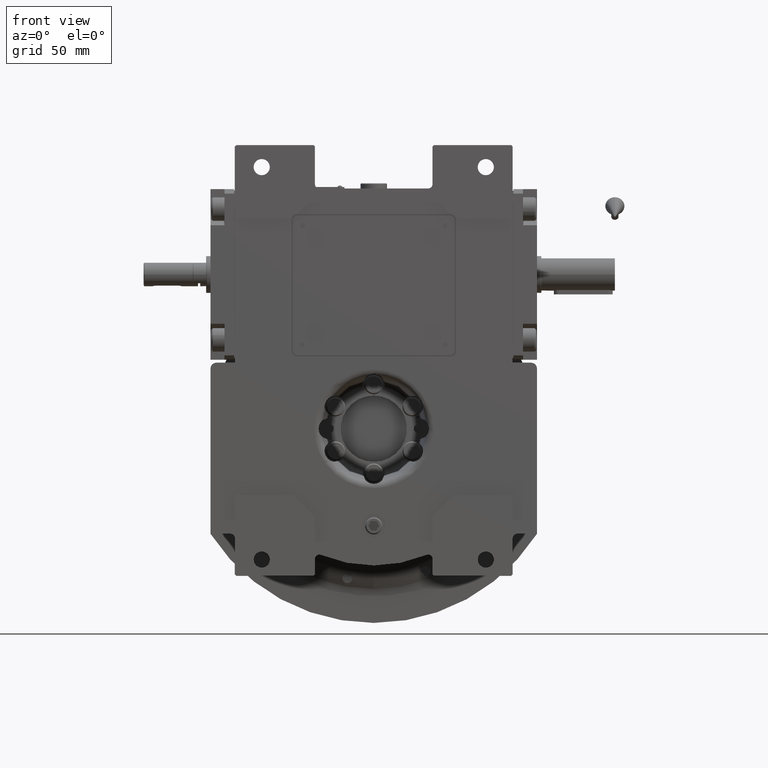
[diagram: clean part render]
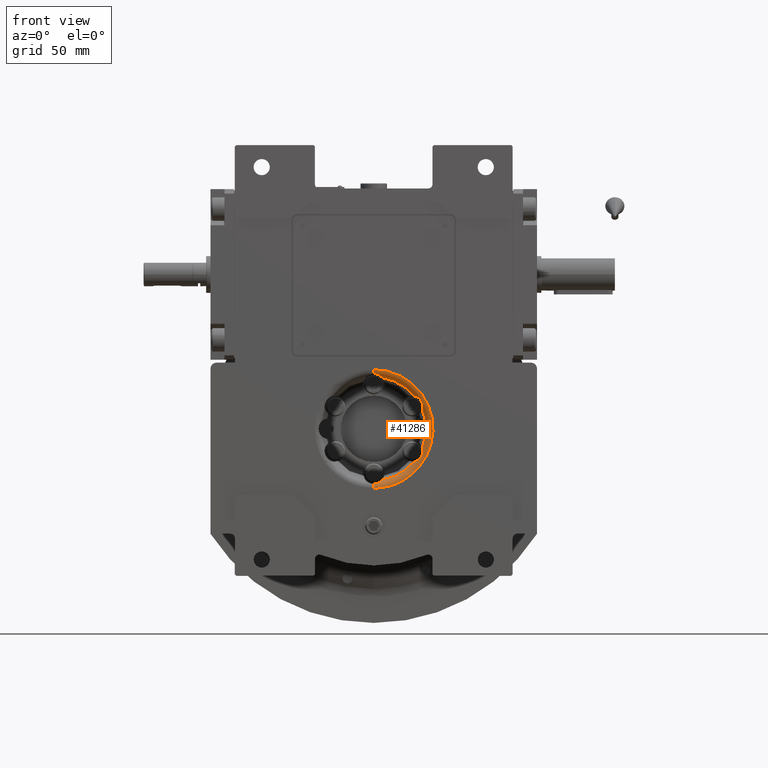
[diagram: same view with one face highlighted and labeled with its STEP entity id]
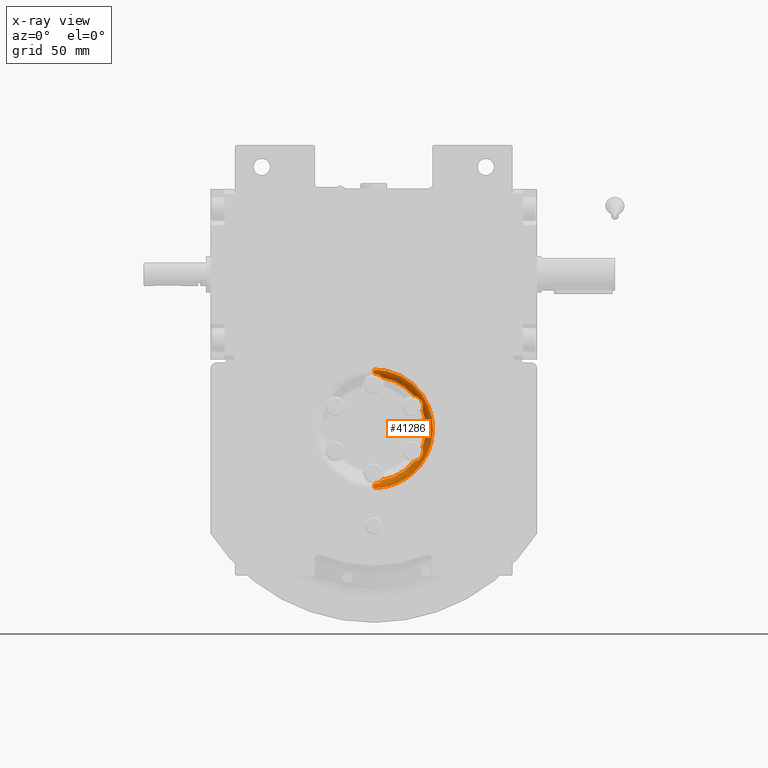
[diagram: x-ray of the same camera — body ghosted, the highlighted face saturated]
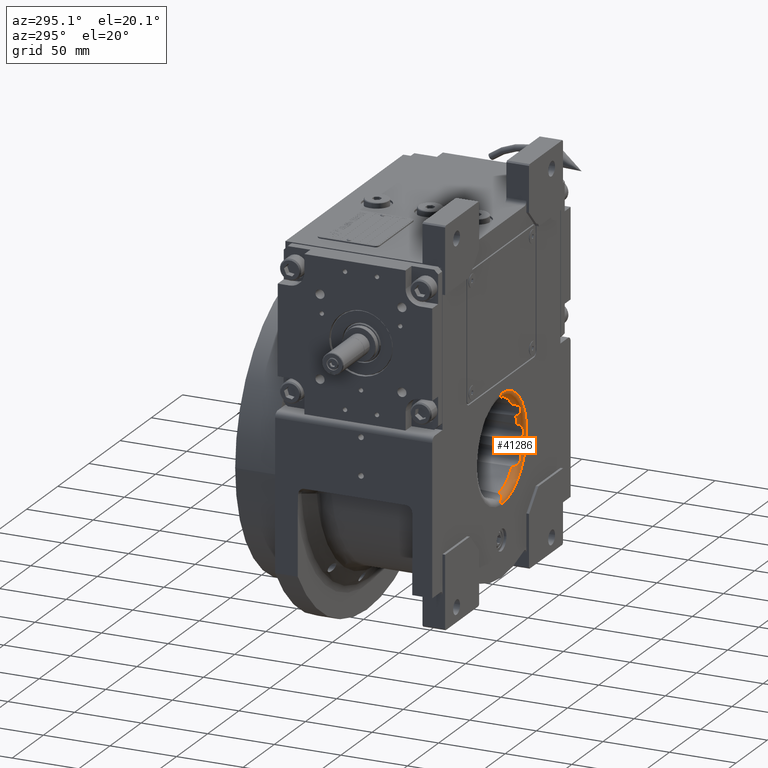
[diagram: same view with one face highlighted and labeled with its STEP entity id]
A machine part, front view. The second image highlights one B-rep face of the part: STEP entity #41286.
The next image is the same camera in x-ray: the body ghosted, the highlighted face saturated — about 0% of this face is hidden behind the body in this view.
A second angle (auxiliary view) of the same face is appended — the face is thin or edge-on in the first view.
In plain terms, the highlighted toroidal blend (fillet) surface has major radius 40.3096 mm and minor (blend) radius 5 mm.
Its self-contained STEP definition (entity closure, byte-faithful):
#58 = CARTESIAN_POINT ( 'NONE',  ( 5.337701823371754806, -50.36790029787562872, -35.26884467588536154 ) ) ;
#129 = CARTESIAN_POINT ( 'NONE',  ( 33.17893052199347181, -52.51570751897647682, 17.10961350186001795 ) ) ;
#495 = CARTESIAN_POINT ( 'NONE',  ( 33.13291483700965756, -49.87096445335872374, -12.74149848118316974 ) ) ;
#1062 = CARTESIAN_POINT ( 'NONE',  ( 3.927364176773904703, -51.85339626314458172, -36.38951892855690318 ) ) ;
#1251 = VERTEX_POINT ( 'NONE', #58773 ) ;
#1513 = ORIENTED_EDGE ( 'NONE', *, *, #58444, .T. ) ;
#1780 = CARTESIAN_POINT ( 'NONE',  ( 33.47122554379335213, -51.71447766371607457, 14.49539197650247324 ) ) ;
#1911 = CARTESIAN_POINT ( 'NONE',  ( 27.31593238095755183, -48.69402850002909844, -22.38019785351220392 ) ) ;
#1923 = CARTESIAN_POINT ( 'NONE',  ( 2.734876950820428032, -52.32990322030311603, 36.99229463659165162 ) ) ;
#2087 = DIRECTION ( 'NONE',  ( 0.1620874830058615379, 0.000000000000000000, 0.9867763920224401630 ) ) ;
#2116 = CARTESIAN_POINT ( 'NONE',  ( 36.56951354596490944, -52.01488252080931574, 3.630701753716773617 ) ) ;
#2455 = CARTESIAN_POINT ( 'NONE',  ( 36.40000049578573282, -51.86281786899579060, 3.909833307100125221 ) ) ;
#3137 = ORIENTED_EDGE ( 'NONE', *, *, #36377, .T. ) ;
#3145 = CARTESIAN_POINT ( 'NONE',  ( 35.21699317913081728, -50.25430774466143191, 5.388069560106872657 ) ) ;
#3476 = CARTESIAN_POINT ( 'NONE',  ( 28.10521256263347212, -50.68228589387105387, -22.19279268949464523 ) ) ;
#3529 = CARTESIAN_POINT ( 'NONE',  ( 5.064238222211565166, -50.84381052456432570, 35.53296774913933120 ) ) ;
#3813 = CARTESIAN_POINT ( 'NONE',  ( 29.00815283428548597, -51.53334905786609710, -21.86827045392459112 ) ) ;
#4105 = AXIS2_PLACEMENT_3D ( 'NONE', #41532, #55928, #45641 ) ;
#4238 = CARTESIAN_POINT ( 'NONE',  ( 27.87367530640939606, -50.36585204076593669, 22.25717817202906801 ) ) ;
#4517 = CARTESIAN_POINT ( 'NONE',  ( 28.23862424446462072, -50.84186257216887128, -22.15274620477019596 ) ) ;
#4834 = CARTESIAN_POINT ( 'NONE',  ( 35.59153721165860418, -50.93297889962916258, -4.999541244640769655 ) ) ;
#4841 = CARTESIAN_POINT ( 'NONE',  ( 29.60377671637495567, -51.88159357622579648, -21.56661933879855653 ) ) ;
#4846 = CARTESIAN_POINT ( 'NONE',  ( 2.887888765445114636, -52.28084012321035345, -36.92445607883065861 ) ) ;
#4954 = CARTESIAN_POINT ( 'NONE',  ( 33.47638412819470943, -51.83192453920597131, -14.74925148371837302 ) ) ;
#5259 = CARTESIAN_POINT ( 'NONE',  ( 31.17941295975750293, -52.46491026454771855, 20.40595241245062397 ) ) ;
#5300 = CARTESIAN_POINT ( 'NONE',  ( 1.603850723419534978E-09, -52.63596184683439816, -37.50000000000000000 ) ) ;
#5303 = CARTESIAN_POINT ( 'NONE',  ( 32.29792690182187442, -52.63597494237206575, -19.05838855115340280 ) ) ;
#5598 = CARTESIAN_POINT ( 'NONE',  ( 28.02680617592910295, -50.58149897954005070, 22.21531316707490689 ) ) ;
#5968 = CARTESIAN_POINT ( 'NONE',  ( 33.04653019408335268, -49.04715237561592289, -12.48716493955152984 ) ) ;
#6199 = CARTESIAN_POINT ( 'NONE',  ( 3.962931187770181829, -51.83334784987367527, -36.36752667095072411 ) ) ;
#6411 = CARTESIAN_POINT ( 'NONE',  ( 5.694300232764478054, -49.40179032185762509, 34.87909896521011888 ) ) ;
#6931 = CARTESIAN_POINT ( 'NONE',  ( 33.46828871974677355, -52.12832100846947014, 15.46501159769935541 ) ) ;
#6961 = ORIENTED_EDGE ( 'NONE', *, *, #15306, .T. ) ;
#7279 = CARTESIAN_POINT ( 'NONE',  ( 33.30415381935078045, -50.84186645004189131, 13.37899650279992692 ) ) ;
#7288 = ORIENTED_EDGE ( 'NONE', *, *, #45070, .T. ) ;
#7430 = CARTESIAN_POINT ( 'NONE',  ( 1.915896033320932945, -52.49325482626420580, 37.25139006346445569 ) ) ;
#7631 = CARTESIAN_POINT ( 'NONE',  ( 37.28859166014729709, -52.51570052770613728, -1.772154628594864834 ) ) ;
#7958 = CARTESIAN_POINT ( 'NONE',  ( 37.11171875027556410, -52.40727896301838484, -2.409187821952439190 ) ) ;
#7977 = DIRECTION ( 'NONE',  ( 0.7735296818432549903, 0.000000000000000000, -0.6337600739297740704 ) ) ;
#8029 = B_SPLINE_CURVE_WITH_KNOTS ( 'NONE', 3,
 ( #31425, #61708, #51722, #36948, #21100, #36278, #4238, #40758, #15909, #5598, #31774, #26606, #57893, #35575, #10760, #9396, #46247, #52040, #46923, #52733, #67234, #25270, #41450, #67918, #19739, #20758, #20071, #47260, #41783, #41091, #5259, #36607, #56879, #25598, #35931, #9749, #30760, #46573, #129, #67569, #62391, #15248, #58561, #33446, #54415, #22439, #6931, #54075, #58242, #12101, #42450, #32435, #17630, #1780, #16931, #32099, #21431, #22785, #7279, #12425, #28299, #16257, #64775, #37293, #26939, #11760 ),
 .UNSPECIFIED., .F., .F.,
 ( 4, 2, 2, 1, 1, 2, 2, 2, 2, 1, 1, 2, 2, 2, 2, 1, 1, 2, 2, 2, 2, 2, 1, 1, 2, 2, 2, 2, 1, 1, 2, 2, 2, 2, 1, 1, 2, 2, 4 ),
 ( 0.000000000000000000, 0.06249999999999968081, 0.09374999999999891753, 0.1093749999999992228, 0.1171874999999995420, 0.1210937499999996531, 0.1249999999999997780, 0.1874999999999952816, 0.2187499999999927836, 0.2343749999999917566, 0.2421874999999907296, 0.2460937499999900913, 0.2499999999999894251, 0.3124999999999811817, 0.3437499999999769074, 0.3593749999999746314, 0.3671874999999735767, 0.3710937499999735767, 0.3749999999999735767, 0.4999999999999857891, 0.5624999999999918954, 0.5937499999999953371, 0.6093749999999971134, 0.6171874999999977796, 0.6210937499999976685, 0.6249999999999976685, 0.6875000000000015543, 0.7187500000000036637, 0.7343750000000046629, 0.7421875000000054401, 0.7460937500000058842, 0.7500000000000062172, 0.8125000000000159872, 0.8437500000000210942, 0.8593750000000232037, 0.8671875000000238698, 0.8710937500000242029, 0.8750000000000245359, 1.000000000000000000 ),
 .UNSPECIFIED. ) ;
#8290 = CARTESIAN_POINT ( 'NONE',  ( 36.54770422788802620, -51.99170874615509774, -3.658729259004236845 ) ) ;
#8641 = CARTESIAN_POINT ( 'NONE',  ( 28.14449002315179627, -50.73086332806069976, -22.18124559644082439 ) ) ;
#8695 = CARTESIAN_POINT ( 'NONE',  ( 5.185284179251578252, -50.65179097844611533, 35.41871935972974228 ) ) ;
#8974 = CARTESIAN_POINT ( 'NONE',  ( 37.07678360962030695, -52.38337510237533223, 2.485916156923164255 ) ) ;
#8979 = CARTESIAN_POINT ( 'NONE',  ( 31.49487247763566700, -52.53291593041920748, -20.08474139120361812 ) ) ;
#9075 = DIRECTION ( 'NONE',  ( 4.918457069522339947E-18, -1.000000000000000000, 1.317897701722344040E-19 ) ) ;
#9081 = CARTESIAN_POINT ( 'NONE',  ( 6.679101716144940737E-13, -48.69402850002909844, 2.211564265053310061E-13 ) ) ;
#9317 = CARTESIAN_POINT ( 'NONE',  ( 28.06722011688169616, -50.63430292875203520, -22.20382291926351925 ) ) ;
#9396 = CARTESIAN_POINT ( 'NONE',  ( 29.22287938312502220, -51.66287537548548414, 21.76369081053033483 ) ) ;
#9675 = CARTESIAN_POINT ( 'NONE',  ( 30.26292163212067621, -52.18244000722235398, -21.16009774410348854 ) ) ;
#9749 = CARTESIAN_POINT ( 'NONE',  ( 33.00279054788138211, -52.58169897620617661, 17.64155589278328051 ) ) ;
#10006 = ORIENTED_EDGE ( 'NONE', *, *, #28846, .T. ) ;
#10017 = CARTESIAN_POINT ( 'NONE',  ( 30.66795111193989598, -52.32953584293530014, -20.86511408391906386 ) ) ;
#10021 = CARTESIAN_POINT ( 'NONE',  ( 5.531674867255628847, -49.87266461486670011, -35.06522989261907952 ) ) ;
#10340 = CARTESIAN_POINT ( 'NONE',  ( 1.402137546746539121, -52.58474267378018396, -37.39942789233111142 ) ) ;
#10454 = CARTESIAN_POINT ( 'NONE',  ( 33.03978607334229878, -48.69402850002909844, -12.46619244321105846 ) ) ;
#10555 = ORIENTED_EDGE ( 'NONE', *, *, #30285, .F. ) ;
#10695 = CIRCLE ( 'NONE', #4105, 35.31336033009824149 ) ;
#10760 = CARTESIAN_POINT ( 'NONE',  ( 29.01356977931722980, -51.52633281368774476, 21.86180825632124680 ) ) ;
#10974 = AXIS2_PLACEMENT_3D ( 'NONE', #12738, #49239, #2087 ) ;
#11050 = ORIENTED_EDGE ( 'NONE', *, *, #64403, .F. ) ;
#11147 = CARTESIAN_POINT ( 'NONE',  ( 33.32725159861366393, -52.41119431303569343, -16.51474471725534698 ) ) ;
#11353 = CARTESIAN_POINT ( 'NONE',  ( 5.244244371709466002, -50.54810657151961806, -35.36152057363512569 ) ) ;
#11571 = CARTESIAN_POINT ( 'NONE',  ( 1.770545071225397615, -52.51592466916218171, 37.28897095198423273 ) ) ;
#11760 = CARTESIAN_POINT ( 'NONE',  ( 33.03978607334229878, -48.69402850002909844, 12.46619244321109932 ) ) ;
#11907 = CARTESIAN_POINT ( 'NONE',  ( 5.194316906232550046, -50.63645387778893081, 35.41003222839429299 ) ) ;
#12101 = CARTESIAN_POINT ( 'NONE',  ( 33.48064371808035844, -51.93308210363574773, 14.96854866295646680 ) ) ;
#12235 = CARTESIAN_POINT ( 'NONE',  ( 1.221830501838894634, -52.58184760369663735, 37.40229286789893592 ) ) ;
#12425 = CARTESIAN_POINT ( 'NONE',  ( 33.28176752831429042, -50.73086541177932673, 13.28322245982712246 ) ) ;
#12589 = DIRECTION ( 'NONE',  ( 1.823279159433930648E-09, -1.000000000000000000, -5.938027847207545066E-11 ) ) ;
#12738 = CARTESIAN_POINT ( 'NONE',  ( 3.552713678800499352E-15, -48.69402850002909844, 3.197442310920450205E-14 ) ) ;
#13111 = CARTESIAN_POINT ( 'NONE',  ( 35.26789547137310876, -50.36584665059920951, 5.338459679150745707 ) ) ;
#13442 = CARTESIAN_POINT ( 'NONE',  ( 36.78847654692931002, -52.18241706506276500, -3.193792481467547795 ) ) ;
#13501 = EDGE_LOOP ( 'NONE', ( #56017, #26667, #1513, #37821, #11050, #10555, #33441, #7288, #3137, #43814, #10006, #6961 ) ) ;
#13547 = DIRECTION ( 'NONE',  ( -0.02678532785635634114, -4.981172736452204855E-35, 0.9996412087402295477 ) ) ;
#13741 = VERTEX_POINT ( 'NONE', #34278 ) ;
#13770 = VERTEX_POINT ( 'NONE', #1911 ) ;
#13850 = CARTESIAN_POINT ( 'NONE',  ( 4.998169086174725884, -50.93486924949667127, 35.59279415017877568 ) ) ;
#14133 = CARTESIAN_POINT ( 'NONE',  ( 35.37957687954643404, -50.58149090350546118, 5.225636704071556338 ) ) ;
#14243 = FACE_OUTER_BOUND ( 'NONE', #13501, .T. ) ;
#14467 = CARTESIAN_POINT ( 'NONE',  ( 36.42988235149142895, -51.88955490245567148, -3.860478954272677399 ) ) ;
#15185 = EDGE_CURVE ( 'NONE', #43200, #22497, #8029, .T. ) ;
#15248 = CARTESIAN_POINT ( 'NONE',  ( 33.24611623837467533, -52.47572947502832363, 16.86143635218840586 ) ) ;
#15291 = CARTESIAN_POINT ( 'NONE',  ( 33.42140232371107800, -52.28035835813800247, -15.96006947599738446 ) ) ;
#15306 = EDGE_CURVE ( 'NONE', #27937, #40218, #66317, .T. ) ;
#15518 = CARTESIAN_POINT ( 'NONE',  ( 2.080993373853773143, -52.46516507019692455, -37.20554895788840355 ) ) ;
#15828 = CARTESIAN_POINT ( 'NONE',  ( 35.71345948986768803, -51.10995180178847619, -4.861389926078605761 ) ) ;
#15909 = CARTESIAN_POINT ( 'NONE',  ( 28.00040770489961517, -50.54599577855172043, 22.22270655592977917 ) ) ;
#16189 = CARTESIAN_POINT ( 'NONE',  ( 4.234545783285724063, -51.66433971506830147, -36.19103113174640640 ) ) ;
#16257 = CARTESIAN_POINT ( 'NONE',  ( 33.26569889372122901, -50.64967766016712858, 13.21718720320317253 ) ) ;
#16302 = CARTESIAN_POINT ( 'NONE',  ( 33.39774868221235238, -52.32431288209246389, -16.12886248307036752 ) ) ;
#16861 = CARTESIAN_POINT ( 'NONE',  ( 5.224591463803101021, -50.58361883603067355, -35.38071667423977118 ) ) ;
#16931 = CARTESIAN_POINT ( 'NONE',  ( 33.44255657133429338, -51.53335785086626686, 14.18767337498761982 ) ) ;
#17079 = CARTESIAN_POINT ( 'NONE',  ( 4.180282006034219400, -51.71590935672040246, 36.23605893311638226 ) ) ;
#17630 = CARTESIAN_POINT ( 'NONE',  ( 33.47912878839829887, -51.88159820612143136, 14.85432302713027752 ) ) ;
#17768 = CARTESIAN_POINT ( 'NONE',  ( 3.192681564754665580, -52.18308567126774022, 36.78930608288073500 ) ) ;
#17957 = CARTESIAN_POINT ( 'NONE',  ( 37.47513059706427185, -52.62272463273500023, -0.7071350136694759536 ) ) ;
#18331 = CARTESIAN_POINT ( 'NONE',  ( 2.131628207280299927E-14, -48.69402850002909844, -1.421085471520200056E-14 ) ) ;
#18641 = CARTESIAN_POINT ( 'NONE',  ( 36.99175106433458637, -52.32951475381535289, -2.735817770161150797 ) ) ;
#18858 = VERTEX_POINT ( 'NONE', #5300 ) ;
#18915 = CARTESIAN_POINT ( 'NONE',  ( 34.84639029672330679, -48.69402850002909844, 5.723853692384750502 ) ) ;
#19031 = CARTESIAN_POINT ( 'NONE',  ( 3.775365085006061161, -51.93433031134718192, 36.48073606345568010 ) ) ;
#19084 = DIRECTION ( 'NONE',  ( 0.000000000000000000, 1.000000000000000000, 0.000000000000000000 ) ) ;
#19309 = CARTESIAN_POINT ( 'NONE',  ( 37.18576161657646395, -52.45287492364003157, 2.148329681596455210 ) ) ;
#19667 = CARTESIAN_POINT ( 'NONE',  ( 28.32341916981033236, -50.93299308847389995, -22.12549269365975846 ) ) ;
#19739 = CARTESIAN_POINT ( 'NONE',  ( 30.66688363129242134, -52.32431383069634023, 20.85886274215834035 ) ) ;
#20004 = CARTESIAN_POINT ( 'NONE',  ( 35.79781398716053076, -51.22088001544229741, -4.761081786764392199 ) ) ;
#20071 = CARTESIAN_POINT ( 'NONE',  ( 30.96581530416369432, -52.41119386538398572, 20.60487158150344200 ) ) ;
#20688 = CARTESIAN_POINT ( 'NONE',  ( 5.213985635477821567, -50.60237093085655147, -35.39102302228734231 ) ) ;
#20758 = CARTESIAN_POINT ( 'NONE',  ( 30.86649004480669944, -52.38337881837695420, 20.69124924031606483 ) ) ;
#20804 = CARTESIAN_POINT ( 'NONE',  ( 33.47764524545743114, -51.85197947855031231, -14.79103816347397249 ) ) ;
#21039 = CARTESIAN_POINT ( 'NONE',  ( 0.7110346599056786010, -52.63607783449349853, -37.50017074367764280 ) ) ;
#21100 = CARTESIAN_POINT ( 'NONE',  ( 27.67560485189704167, -50.02738671250261149, 22.30641392893075192 ) ) ;
#21431 = CARTESIAN_POINT ( 'NONE',  ( 33.35946369008372869, -51.10997601039425575, 13.64666777653352092 ) ) ;
#21473 = CARTESIAN_POINT ( 'NONE',  ( 33.43965772086238530, -51.52630988581428539, -14.19555978917377281 ) ) ;
#21708 = CARTESIAN_POINT ( 'NONE',  ( 5.660053884534736568, -49.38902629221513507, -34.92249272585409159 ) ) ;
#21823 = CARTESIAN_POINT ( 'NONE',  ( 33.47425245457162646, -51.80156191773620833, -14.68692804222108350 ) ) ;
#21937 = CARTESIAN_POINT ( 'NONE',  ( 33.03978607334229878, -48.69402850002909844, 12.46619244321109932 ) ) ;
#22047 = CARTESIAN_POINT ( 'NONE',  ( 3.907753674010602474, -51.86424423495070357, -36.40152814672669024 ) ) ;
#22139 = B_SPLINE_CURVE_WITH_KNOTS ( 'NONE', 3,
 ( #10454, #5968, #63103, #495, #52779, #37332, #41495, #42147, #42831, #36992, #31471, #57938, #62779, #31817, #21473, #52429, #42498, #21823, #4954, #20804, #67964, #32140, #62437, #15291, #16302, #58286, #11147, #53097, #25981, #41827, #47966, #36324, #31131, #5303, #41373, #29669, #50943, #8979, #34822, #61290, #67839, #36205, #46170, #56441, #10017, #9675, #62312, #50629, #67490, #30689, #45473, #55769, #4841, #35171, #3813, #51647, #25530, #19667, #4517, #8641, #3476, #41709, #9317, #56798, #40683, #56116 ),
 .UNSPECIFIED., .F., .F.,
 ( 4, 2, 2, 1, 1, 2, 2, 2, 2, 1, 1, 2, 2, 2, 2, 1, 1, 2, 2, 2, 2, 2, 1, 1, 2, 2, 2, 2, 1, 1, 2, 2, 2, 2, 1, 1, 2, 2, 4 ),
 ( 0.000000000000000000, 0.06249999999999567013, 0.09374999999999290845, 0.1093749999999919786, 0.1171874999999911876, 0.1210937499999912847, 0.1249999999999913680, 0.1874999999999866773, 0.2187499999999844569, 0.2343749999999831801, 0.2421874999999826528, 0.2460937499999822642, 0.2499999999999818756, 0.3124999999999772959, 0.3437499999999748534, 0.3593749999999740763, 0.3671874999999734657, 0.3710937499999731881, 0.3749999999999729106, 0.4999999999999689138, 0.5624999999999669154, 0.5937499999999651390, 0.6093749999999642508, 0.6171874999999641398, 0.6210937499999640288, 0.6249999999999644729, 0.6874999999999646949, 0.7187499999999648059, 0.7343749999999650280, 0.7421874999999654721, 0.7460937499999658051, 0.7499999999999662492, 0.8124999999999700240, 0.8437499999999716893, 0.8593749999999724665, 0.8671874999999723554, 0.8710937499999726885, 0.8749999999999731326, 1.000000000000000000 ),
 .UNSPECIFIED. ) ;
#22439 = CARTESIAN_POINT ( 'NONE',  ( 33.45664107126697218, -52.18244567291540648, 15.62842879029566134 ) ) ;
#22497 = VERTEX_POINT ( 'NONE', #21937 ) ;
#22785 = CARTESIAN_POINT ( 'NONE',  ( 33.32294937080420283, -50.93299817746586200, 13.46605913051584302 ) ) ;
#22821 = CIRCLE ( 'NONE', #66800, 35.31336033009879571 ) ;
#22992 = CIRCLE ( 'NONE', #49349, 35.31336033009810649 ) ;
#23108 = CARTESIAN_POINT ( 'NONE',  ( 80.61913312099713380, -53.49999999999999289, 40.30952624498025472 ) ) ;
#23143 = CARTESIAN_POINT ( 'NONE',  ( 37.39900549891601855, -52.58451775325541888, 1.404442840383443469 ) ) ;
#23822 = CARTESIAN_POINT ( 'NONE',  ( 35.96964941404555560, -51.42891239941420878, 4.543603866669055691 ) ) ;
#23990 = DIRECTION ( 'NONE',  ( 1.000000000000000000, 1.823279159426514974E-09, 1.249135085591654028E-10 ) ) ;
#24162 = CARTESIAN_POINT ( 'NONE',  ( 35.38985778205442756, -50.60022246318496997, 5.215067525168076479 ) ) ;
#24251 = B_SPLINE_CURVE_WITH_KNOTS ( 'NONE', 3,
 ( #64922, #27750, #27429, #12235, #38438, #44273, #11571, #7430, #33590, #54214, #38764, #28095, #1923, #17768, #49417, #32586, #66196, #19031, #64215, #43943, #40046, #17079, #53555, #60996, #50684, #13850, #3529, #55824, #38099, #8695, #11907, #29725, #6411, #32919 ),
 .UNSPECIFIED., .F., .F.,
 ( 4, 2, 2, 1, 1, 2, 2, 2, 2, 1, 1, 2, 2, 2, 2, 1, 1, 2, 2, 4 ),
 ( 0.000000000000000000, 0.1249999999999965306, 0.1874999999999949485, 0.2187499999999946154, 0.2343749999999944766, 0.2421874999999941991, 0.2499999999999938938, 0.3749999999999873435, 0.4374999999999840128, 0.4687499999999824585, 0.4843749999999811262, 0.4921874999999810707, 0.4999999999999810152, 0.6249999999999942268, 0.6875000000000022204, 0.7187500000000056621, 0.7343750000000067724, 0.7421875000000064393, 0.7500000000000061062, 1.000000000000000000 ),
 .UNSPECIFIED. ) ;
#24482 = CARTESIAN_POINT ( 'NONE',  ( 36.72054179783166461, -52.13325274663163356, 3.346855141370132625 ) ) ;
#25188 = CARTESIAN_POINT ( 'NONE',  ( 34.87905880624386157, -49.40060590605073543, -5.694260940337866117 ) ) ;
#25270 = CARTESIAN_POINT ( 'NONE',  ( 29.85480316765153930, -52.01489513670455267, 21.42902172236642500 ) ) ;
#25530 = CARTESIAN_POINT ( 'NONE',  ( 28.49808564078249873, -51.10996891288393584, -22.06681137984809027 ) ) ;
#25598 = CARTESIAN_POINT ( 'NONE',  ( 32.65401643929548925, -52.63597446807150959, 18.44162169259632833 ) ) ;
#25868 = CARTESIAN_POINT ( 'NONE',  ( 5.479718038686235637, -50.02922342987908877, -35.12163865978877908 ) ) ;
#25981 = CARTESIAN_POINT ( 'NONE',  ( 33.27797942854616053, -52.45287691597067692, -16.73237772134240586 ) ) ;
#26213 = CARTESIAN_POINT ( 'NONE',  ( 2.729881624856877576, -52.32472363860986064, -36.98829363925602820 ) ) ;
#26388 =( BOUNDED_CURVE ( )  B_SPLINE_CURVE ( 3, ( #60243, #23108, #39287, #44444 ),
 .UNSPECIFIED., .F., .F. ) 
 B_SPLINE_CURVE_WITH_KNOTS ( ( 4, 4 ),
 ( 4.574175343352308687, 7.715766673011676957 ),
 .UNSPECIFIED. ) 
 CURVE ( )  GEOMETRIC_REPRESENTATION_ITEM ( )  RATIONAL_B_SPLINE_CURVE ( ( 1.000000000000000000, 0.3333337746434750226, 0.3333337746434750226, 1.000000000000000000 ) ) 
 REPRESENTATION_ITEM ( '' )  );
#26606 = CARTESIAN_POINT ( 'NONE',  ( 28.25714746586978876, -50.88099064009185923, 22.14962261821122524 ) ) ;
#26667 = ORIENTED_EDGE ( 'NONE', *, *, #30172, .T. ) ;
#26939 = CARTESIAN_POINT ( 'NONE',  ( 33.05327720064025243, -49.40060785290074108, 12.50816626661879027 ) ) ;
#27429 = CARTESIAN_POINT ( 'NONE',  ( 0.7059246916229136026, -52.62281146499528717, 37.47527891404886446 ) ) ;
#27750 = CARTESIAN_POINT ( 'NONE',  ( 0.3553892401714957572, -52.63601862950244481, 37.50008358893645521 ) ) ;
#27937 = VERTEX_POINT ( 'NONE', #18915 ) ;
#28095 = CARTESIAN_POINT ( 'NONE',  ( 2.408118900335904922, -52.40757125845829023, 37.11215947100981083 ) ) ;
#28299 = CARTESIAN_POINT ( 'NONE',  ( 33.27212871677052419, -50.68228712521369772, 13.24343285920247837 ) ) ;
#28643 = CARTESIAN_POINT ( 'NONE',  ( 35.54621019540860516, -50.88097725999860899, 5.053574342438668765 ) ) ;
#28846 = EDGE_CURVE ( 'NONE', #22497, #27937, #22992, .T. ) ;
#29326 = CARTESIAN_POINT ( 'NONE',  ( 36.47933610033150842, -51.93306012933629745, -3.777230342524870998 ) ) ;
#29664 = CARTESIAN_POINT ( 'NONE',  ( 35.36041206512231838, -50.54598817026804625, 5.245239083397333246 ) ) ;
#29669 = CARTESIAN_POINT ( 'NONE',  ( 31.77943181704246456, -52.58169936381241172, -19.76047654109651219 ) ) ;
#29725 = CARTESIAN_POINT ( 'NONE',  ( 5.528909140942973366, -50.05637871631666513, 35.08652819440540327 ) ) ;
#30104 = DIRECTION ( 'NONE',  ( 0.9356171648491155013, 0.000000000000000000, 0.3530163180926668698 ) ) ;
#30172 = EDGE_CURVE ( 'NONE', #61483, #13770, #22139, .T. ) ;
#30285 = EDGE_CURVE ( 'NONE', #1251, #40531, #26388, .T. ) ;
#30684 = CARTESIAN_POINT ( 'NONE',  ( 36.42091660128095043, -51.88158004596570549, -3.875382485803983368 ) ) ;
#30689 = CARTESIAN_POINT ( 'NONE',  ( 29.70345441384621310, -51.93307686450362581, -21.51082020502984093 ) ) ;
#30760 = CARTESIAN_POINT ( 'NONE',  ( 33.06173187593444140, -52.56447150951541403, 17.47884876626335071 ) ) ;
#31016 = CARTESIAN_POINT ( 'NONE',  ( 36.44970552927929930, -51.90707204760276738, -3.827277791422906361 ) ) ;
#31024 = CARTESIAN_POINT ( 'NONE',  ( 3.629204777308264074, -52.01591009991927450, -36.57070120332277696 ) ) ;
#31131 = CARTESIAN_POINT ( 'NONE',  ( 32.83203325595918898, -52.63593566235078214, -18.13317245575580472 ) ) ;
#31425 = CARTESIAN_POINT ( 'NONE',  ( 27.31593238095755183, -48.69402850002909844, 22.38019785351220392 ) ) ;
#31471 = CARTESIAN_POINT ( 'NONE',  ( 33.25605211856567678, -50.60021180593497547, -13.17852828129284148 ) ) ;
#31774 = CARTESIAN_POINT ( 'NONE',  ( 28.04099426326365219, -50.60023071671263040, 22.21130066121823532 ) ) ;
#31817 = CARTESIAN_POINT ( 'NONE',  ( 33.42242944526029191, -51.42890714545311681, -14.04994483407304884 ) ) ;
#32099 = CARTESIAN_POINT ( 'NONE',  ( 33.38236379788766328, -51.22090615572489014, 13.77571757718956569 ) ) ;
#32140 = CARTESIAN_POINT ( 'NONE',  ( 33.48547578822395110, -52.01488142739277976, -15.14047951761521027 ) ) ;
#32365 = CARTESIAN_POINT ( 'NONE',  ( 5.052230304936203176, -50.88291087591419171, -35.54746896849793103 ) ) ;
#32382 = CARTESIAN_POINT ( 'NONE',  ( 33.03978607334229878, -48.69402850002909844, -12.46619244321105846 ) ) ;
#32435 = CARTESIAN_POINT ( 'NONE',  ( 33.47944135099588436, -51.88957451512737151, 14.87171670398391043 ) ) ;
#32586 = CARTESIAN_POINT ( 'NONE',  ( 3.552697777260849676, -52.03964563207235017, 36.60600020734843696 ) ) ;
#32919 = CARTESIAN_POINT ( 'NONE',  ( 5.723853692384750502, -48.69402850002909844, 34.84639029672330679 ) ) ;
#33441 = ORIENTED_EDGE ( 'NONE', *, *, #33477, .T. ) ;
#33446 = CARTESIAN_POINT ( 'NONE',  ( 33.34427225988937238, -52.40729835805628767, 16.46952285755926582 ) ) ;
#33477 = EDGE_CURVE ( 'NONE', #1251, #13741, #62323, .T. ) ;
#33590 = CARTESIAN_POINT ( 'NONE',  ( 1.977912363558552711, -52.48296653075372120, 37.23451985465798231 ) ) ;
#33770 = EDGE_CURVE ( 'NONE', #40218, #61483, #10695, .T. ) ;
#33792 = CARTESIAN_POINT ( 'NONE',  ( 36.38801784321121602, -51.85198699306323533, 3.929401419260282857 ) ) ;
#34142 = CARTESIAN_POINT ( 'NONE',  ( 37.49996300375963187, -52.63593684017117624, 0.7122525189801178769 ) ) ;
#34278 = CARTESIAN_POINT ( 'NONE',  ( -1.603856535494735125E-09, -52.63596184683439816, 37.50000000000000000 ) ) ;
#34468 = CARTESIAN_POINT ( 'NONE',  ( 36.71685633651422620, -52.12829254166155124, -3.341135087358827249 ) ) ;
#34822 = CARTESIAN_POINT ( 'NONE',  ( 31.40682313398743375, -52.51570713425481784, -20.17899220836424945 ) ) ;
#35085 = VERTEX_POINT ( 'NONE', #56067 ) ;
#35166 = CARTESIAN_POINT ( 'NONE',  ( 36.92381213834346454, -52.28035396898712150, 2.888888046027838108 ) ) ;
#35171 = CARTESIAN_POINT ( 'NONE',  ( 29.28897938718188243, -51.71447019792519484, -21.73923974886477595 ) ) ;
#35275 = CARTESIAN_POINT ( 'NONE',  ( 0.000000000000000000, -48.50000000000000000, 2.075601271575409789E-14 ) ) ;
#35575 = CARTESIAN_POINT ( 'NONE',  ( 28.87884791413877750, -51.42892988643853158, 21.91969599109720690 ) ) ;
#35931 = CARTESIAN_POINT ( 'NONE',  ( 32.80796835782814469, -52.62272554239600453, 18.12519688223765257 ) ) ;
#36081 = CARTESIAN_POINT ( 'NONE',  ( 5.723853692384739844, -48.69402850002909844, -34.84639029672324995 ) ) ;
#36200 = CARTESIAN_POINT ( 'NONE',  ( 35.43621862150811097, -50.68227731762046773, -5.166926797332579646 ) ) ;
#36205 = CARTESIAN_POINT ( 'NONE',  ( 31.22548694015809545, -52.47572850317106941, -20.36126595106295767 ) ) ;
#36278 = CARTESIAN_POINT ( 'NONE',  ( 27.80478737583577598, -50.25431197531588623, 22.27468996746642915 ) ) ;
#36324 = CARTESIAN_POINT ( 'NONE',  ( 33.09070784479143157, -52.58451685820838151, -17.48322197248920773 ) ) ;
#36377 = EDGE_CURVE ( 'NONE', #35085, #43200, #40680, .T. ) ;
#36541 = CARTESIAN_POINT ( 'NONE',  ( 2.484828968151736373, -52.38371084309725489, -37.07727184024641076 ) ) ;
#36607 = CARTESIAN_POINT ( 'NONE',  ( 31.68626872389733506, -52.58451776966873581, 19.91578404897598631 ) ) ;
#36948 = CARTESIAN_POINT ( 'NONE',  ( 27.60094196397238520, -49.87096611990490658, 22.32316871656601265 ) ) ;
#36992 = CARTESIAN_POINT ( 'NONE',  ( 33.25243354599053447, -50.58148107585857645, -13.16423490669627228 ) ) ;
#37008 = B_SPLINE_CURVE_WITH_KNOTS ( 'NONE', 3,
 ( #47852, #42041, #21708, #10021, #25868, #47195, #58, #37560, #11353, #16861, #20688, #32365, #57479, #47522, #57154, #16189, #37222, #53337, #6199, #1062, #22047, #31024, #51973, #4846, #26213, #36541, #46852, #41715, #67842, #62664, #15518, #10340, #21039, #48850 ),
 .UNSPECIFIED., .F., .F.,
 ( 4, 2, 2, 1, 1, 2, 2, 2, 2, 1, 1, 2, 2, 2, 2, 1, 1, 2, 2, 4 ),
 ( 0.000000000000000000, 0.1250000000000012768, 0.1875000000000019151, 0.2187500000000021649, 0.2343750000000028033, 0.2421875000000031919, 0.2500000000000035527, 0.3750000000000052180, 0.4375000000000058287, 0.4687500000000061062, 0.4843750000000061617, 0.4921875000000067724, 0.5000000000000073275, 0.6250000000000134337, 0.6875000000000172085, 0.7187500000000192069, 0.7343750000000197620, 0.7421875000000195399, 0.7500000000000194289, 1.000000000000000000 ),
 .UNSPECIFIED. ) ;
#37222 = CARTESIAN_POINT ( 'NONE',  ( 4.136350576122326039, -51.73019518031433961, -36.25730900723204542 ) ) ;
#37293 = CARTESIAN_POINT ( 'NONE',  ( 33.14987156767245580, -50.05446773375656733, 12.75453706369543028 ) ) ;
#37332 = CARTESIAN_POINT ( 'NONE',  ( 33.19285163552664386, -50.25430297535832125, -12.94227091232495752 ) ) ;
#37560 = CARTESIAN_POINT ( 'NONE',  ( 5.273256699148527460, -50.49458095539719693, -35.33304163472539727 ) ) ;
#37821 = ORIENTED_EDGE ( 'NONE', *, *, #40291, .T. ) ;
#38040 = CIRCLE ( 'NONE', #52295, 4.999999999999997335 ) ;
#38099 = CARTESIAN_POINT ( 'NONE',  ( 5.165745638461790357, -50.68437087331018631, 35.43741778987341462 ) ) ;
#38438 = CARTESIAN_POINT ( 'NONE',  ( 1.392152352098263934, -52.56464103782426633, 37.37202038919264169 ) ) ;
#38764 = CARTESIAN_POINT ( 'NONE',  ( 2.038649377651007288, -52.47262412920266428, 37.21764271380533984 ) ) ;
#38965 = CARTESIAN_POINT ( 'NONE',  ( 37.19850634505115750, -52.46080219100161912, 2.105200238876280050 ) ) ;
#39287 = CARTESIAN_POINT ( 'NONE',  ( 80.61913312125007280, -53.49999999999999289, -40.30955543265933727 ) ) ;
#39662 = CARTESIAN_POINT ( 'NONE',  ( 35.33198037425490412, -50.49247849228392937, 5.274177154839412296 ) ) ;
#39982 = CARTESIAN_POINT ( 'NONE',  ( 35.12098070656144699, -50.02738457968334984, 5.480134627675063541 ) ) ;
#40046 = CARTESIAN_POINT ( 'NONE',  ( 3.873265401268835895, -51.88301660528441772, 36.42246871807873987 ) ) ;
#40218 = VERTEX_POINT ( 'NONE', #58169 ) ;
#40246 = DIRECTION ( 'NONE',  ( -1.823235189940330996E-09, -1.000000000000000000, 5.937889069329574197E-11 ) ) ;
#40291 = EDGE_CURVE ( 'NONE', #51543, #18858, #37008, .T. ) ;
#40331 = CARTESIAN_POINT ( 'NONE',  ( 34.84639029672330679, -48.69402850002909844, 5.723853692384750502 ) ) ;
#40531 = VERTEX_POINT ( 'NONE', #51226 ) ;
#40680 = CIRCLE ( 'NONE', #10974, 35.31336033009879571 ) ;
#40683 = CARTESIAN_POINT ( 'NONE',  ( 27.35902844947106871, -49.40060658000712124, -22.37089439156741477 ) ) ;
#40758 = CARTESIAN_POINT ( 'NONE',  ( 27.96131599983145932, -50.49248541036885740, 22.23355130317577277 ) ) ;
#41091 = CARTESIAN_POINT ( 'NONE',  ( 31.16225507603502720, -52.46080342489351978, 20.42240730847411356 ) ) ;
#41286 = ADVANCED_FACE ( 'NONE', ( #14243 ), #51030, .T. ) ;
#41367 = CARTESIAN_POINT ( 'NONE',  ( 35.08589595886771662, -50.05446328550826252, -5.529198402688075831 ) ) ;
#41373 = CARTESIAN_POINT ( 'NONE',  ( 32.10086899087711032, -52.62272617616122261, -19.34993103215717625 ) ) ;
#41450 = CARTESIAN_POINT ( 'NONE',  ( 30.12751894271563913, -52.13326286526504560, 21.25871651591218381 ) ) ;
#41495 = CARTESIAN_POINT ( 'NONE',  ( 33.21212859810687945, -50.36584036514068430, -13.01068557545506899 ) ) ;
#41532 = CARTESIAN_POINT ( 'NONE',  ( 5.258016244624740366E-13, -48.69402850002909844, -1.261213355974177830E-13 ) ) ;
#41709 = CARTESIAN_POINT ( 'NONE',  ( 28.07926875277360779, -50.64967701580562220, -22.20034695413676218 ) ) ;
#41715 = CARTESIAN_POINT ( 'NONE',  ( 2.211513716829621501, -52.44106279288578776, -37.16683635425555110 ) ) ;
#41783 = CARTESIAN_POINT ( 'NONE',  ( 31.12965404850740114, -52.45287643018434665, 20.45338532238477569 ) ) ;
#41827 = CARTESIAN_POINT ( 'NONE',  ( 33.26745204195469086, -52.46080387294993130, -16.77610025241083136 ) ) ;
#42041 = CARTESIAN_POINT ( 'NONE',  ( 5.709080663303878644, -49.04780223875003031, -34.86273980528492444 ) ) ;
#42147 = CARTESIAN_POINT ( 'NONE',  ( 33.23548514069273097, -50.49247019460428021, -13.09839885204534937 ) ) ;
#42450 = CARTESIAN_POINT ( 'NONE',  ( 33.48000752401564029, -51.90709263300050935, 14.91038528627348292 ) ) ;
#42498 = CARTESIAN_POINT ( 'NONE',  ( 33.46764479838432749, -51.72873525483529278, -14.54401815977693779 ) ) ;
#42831 = CARTESIAN_POINT ( 'NONE',  ( 33.24563799385272489, -50.54597896097496346, -13.13767611420215609 ) ) ;
#43200 = VERTEX_POINT ( 'NONE', #50410 ) ;
#43814 = ORIENTED_EDGE ( 'NONE', *, *, #15185, .T. ) ;
#43943 = CARTESIAN_POINT ( 'NONE',  ( 3.858442044556373851, -51.89094338419897667, 36.43138624752816668 ) ) ;
#44140 = CARTESIAN_POINT ( 'NONE',  ( 37.50001849726116632, -52.63597434958369803, -0.3561117040656758825 ) ) ;
#44273 = CARTESIAN_POINT ( 'NONE',  ( 1.644874037106408782, -52.53311730996284723, 37.31807545166538631 ) ) ;
#44444 = CARTESIAN_POINT ( 'NONE',  ( 1.264666971694413862E-10, -53.50000000000000000, -40.30959420574829721 ) ) ;
#44475 = CARTESIAN_POINT ( 'NONE',  ( 37.23410610605434101, -52.48271360324689283, -1.979417804872581232 ) ) ;
#44819 = CARTESIAN_POINT ( 'NONE',  ( 36.18958520610284069, -51.66285831650628779, 4.236487273115095320 ) ) ;
#44980 = CARTESIAN_POINT ( 'NONE',  ( -9.495824261203000555E-09, -48.50000000000000000, 40.30959420584730424 ) ) ;
#45070 = EDGE_CURVE ( 'NONE', #13741, #35085, #24251, .T. ) ;
#45153 = CARTESIAN_POINT ( 'NONE',  ( 37.21721755751382688, -52.47236127106074832, -2.040122467011204588 ) ) ;
#45468 = CARTESIAN_POINT ( 'NONE',  ( 37.11961417082474668, -52.41119098647529739, 2.361445510490241873 ) ) ;
#45473 = CARTESIAN_POINT ( 'NONE',  ( 29.65276615202078503, -51.90708757105891635, -21.53935020580502169 ) ) ;
#45641 = DIRECTION ( 'NONE',  ( 0.9867763920224403851, 0.000000000000000000, -0.1620874830058600391 ) ) ;
#46170 = CARTESIAN_POINT ( 'NONE',  ( 31.21102630237928111, -52.47236941032746671, -20.37537762507152550 ) ) ;
#46247 = CARTESIAN_POINT ( 'NONE',  ( 29.32934222924902912, -51.72875833155671188, 21.71181293755880048 ) ) ;
#46500 = CARTESIAN_POINT ( 'NONE',  ( 36.23460208757386880, -51.71445254791942148, -4.182268425694831926 ) ) ;
#46573 = CARTESIAN_POINT ( 'NONE',  ( 33.14133168001296070, -52.53291608965151482, 17.23299102996407584 ) ) ;
#46852 = CARTESIAN_POINT ( 'NONE',  ( 2.360293438965789470, -52.41149373220157059, -37.12006897531677652 ) ) ;
#46923 = CARTESIAN_POINT ( 'NONE',  ( 29.51145299731207672, -51.83194755450369939, 21.61676110278736829 ) ) ;
#47185 = CARTESIAN_POINT ( 'NONE',  ( 35.53173082155974072, -50.84185014538815750, -5.065540347267565302 ) ) ;
#47195 = CARTESIAN_POINT ( 'NONE',  ( 5.387433124897168746, -50.25629916413981135, -35.21784468947824820 ) ) ;
#47260 = CARTESIAN_POINT ( 'NONE',  ( 31.08066968196108704, -52.44078944466374992, 20.49952221944584352 ) ) ;
#47522 = CARTESIAN_POINT ( 'NONE',  ( 4.541814813226173975, -51.43050647713409518, -35.97103802645839465 ) ) ;
#47852 = CARTESIAN_POINT ( 'NONE',  ( 5.723853692384739844, -48.69402850002909844, -34.84639029672324995 ) ) ;
#47966 = CARTESIAN_POINT ( 'NONE',  ( 33.26178052561902376, -52.46491069388922313, -16.79918701303250828 ) ) ;
#48850 = CARTESIAN_POINT ( 'NONE',  ( 1.603850723419534978E-09, -52.63596184683439816, -37.50000000000000000 ) ) ;
#49239 = DIRECTION ( 'NONE',  ( 0.000000000000000000, 1.000000000000000000, 0.000000000000000000 ) ) ;
#49271 = CARTESIAN_POINT ( 'NONE',  ( 37.20513844134946169, -52.46490927293150008, 2.082369741307111166 ) ) ;
#49349 = AXIS2_PLACEMENT_3D ( 'NONE', #9081, #19084, #30104 ) ;
#49417 = CARTESIAN_POINT ( 'NONE',  ( 3.339907104091571544, -52.12907734915005875, 36.71780282197225631 ) ) ;
#49609 = CARTESIAN_POINT ( 'NONE',  ( 37.25098607146125573, -52.49301059385901880, -1.917438638729862310 ) ) ;
#49931 = CARTESIAN_POINT ( 'NONE',  ( 36.05737728518561624, -51.52631527937622735, 4.426111860069538828 ) ) ;
#50410 = CARTESIAN_POINT ( 'NONE',  ( 27.31593238095755183, -48.69402850002909844, 22.38019785351220392 ) ) ;
#50621 = CARTESIAN_POINT ( 'NONE',  ( 36.33302378060824367, -51.80156892959143988, 4.017868360898967595 ) ) ;
#50629 = CARTESIAN_POINT ( 'NONE',  ( 29.92368513170021060, -52.03866760498323885, -21.38040769592061707 ) ) ;
#50684 = CARTESIAN_POINT ( 'NONE',  ( 4.859880930252791664, -51.11171319746554786, 35.71475506665147037 ) ) ;
#50943 = CARTESIAN_POINT ( 'NONE',  ( 31.66799302031430585, -52.56447173289878805, -19.89287586590361911 ) ) ;
#51030 = TOROIDAL_SURFACE ( 'NONE', #55393, 40.30959420584725450, 5.000000000000000000 ) ;
#51226 = CARTESIAN_POINT ( 'NONE',  ( 1.264666971694413862E-10, -53.50000000000000000, -40.30959420574829721 ) ) ;
#51543 = VERTEX_POINT ( 'NONE', #36081 ) ;
#51647 = CARTESIAN_POINT ( 'NONE',  ( 28.62129483368184424, -51.22089827138685081, -22.02211891114028930 ) ) ;
#51722 = CARTESIAN_POINT ( 'NONE',  ( 27.41356100316795974, -49.38785958119103725, 22.36292318827207737 ) ) ;
#51962 = CARTESIAN_POINT ( 'NONE',  ( 34.84639029672330679, -48.69402850002909844, -5.723853692384729186 ) ) ;
#51973 = CARTESIAN_POINT ( 'NONE',  ( 3.345691111811916585, -52.13401398718759339, -36.72146529842930818 ) ) ;
#52040 = CARTESIAN_POINT ( 'NONE',  ( 29.45641226394031165, -51.80158496029427084, 21.64607794540982511 ) ) ;
#52295 = AXIS2_PLACEMENT_3D ( 'NONE', #65724, #60845, #40246 ) ;
#52429 = CARTESIAN_POINT ( 'NONE',  ( 33.45934058268172606, -51.66285232253062532, -14.42588205847576255 ) ) ;
#52733 = CARTESIAN_POINT ( 'NONE',  ( 29.54827271083531315, -51.85200247294137199, 21.59695908406234466 ) ) ;
#52779 = CARTESIAN_POINT ( 'NONE',  ( 33.15573601727370345, -50.02738253618431941, -12.81453427379062404 ) ) ;
#53097 = CARTESIAN_POINT ( 'NONE',  ( 33.29344318340528019, -52.44078996532201131, -16.66688722583370108 ) ) ;
#53337 = CARTESIAN_POINT ( 'NONE',  ( 4.015853439219795540, -51.80299539890985727, -36.33450886060855822 ) ) ;
#53555 = CARTESIAN_POINT ( 'NONE',  ( 4.432578928204884861, -51.53484705294218315, 36.05731220073288767 ) ) ;
#54075 = CARTESIAN_POINT ( 'NONE',  ( 33.47781768906763489, -52.03867331417256992, 15.22448385080681454 ) ) ;
#54214 = CARTESIAN_POINT ( 'NONE',  ( 2.019194408881594516, -52.47597893432534732, 37.22310471394544606 ) ) ;
#54415 = CARTESIAN_POINT ( 'NONE',  ( 33.40369212787724962, -52.32954046040147489, 16.12668512682351718 ) ) ;
#54763 = CARTESIAN_POINT ( 'NONE',  ( 37.37171639327626593, -52.56446728954435343, -1.393786480555212481 ) ) ;
#54788 = DIRECTION ( 'NONE',  ( 0.000000000000000000, 1.000000000000000000, 0.000000000000000000 ) ) ;
#55097 = CARTESIAN_POINT ( 'NONE',  ( 36.25584551290830859, -51.72874164673397956, 4.138329665054359729 ) ) ;
#55393 = AXIS2_PLACEMENT_3D ( 'NONE', #35275, #9075, #13547 ) ;
#55424 = CARTESIAN_POINT ( 'NONE',  ( 36.60484914690745484, -52.03864701061146292, -3.554190096903473428 ) ) ;
#55769 = CARTESIAN_POINT ( 'NONE',  ( 29.61899564366073179, -51.88956957956813199, -21.55819367444201617 ) ) ;
#55824 = CARTESIAN_POINT ( 'NONE',  ( 5.136070341733884881, -50.73290559845531789, 35.46567060467261001 ) ) ;
#55928 = DIRECTION ( 'NONE',  ( 0.000000000000000000, 1.000000000000000000, 0.000000000000000000 ) ) ;
#56017 = ORIENTED_EDGE ( 'NONE', *, *, #33770, .T. ) ;
#56067 = CARTESIAN_POINT ( 'NONE',  ( 5.723853692384750502, -48.69402850002909844, 34.84639029672330679 ) ) ;
#56109 = CARTESIAN_POINT ( 'NONE',  ( 36.98772381990698221, -52.32430842154132478, 2.730881838701283648 ) ) ;
#56116 = CARTESIAN_POINT ( 'NONE',  ( 27.31593238095755183, -48.69402850002909844, -22.38019785351220392 ) ) ;
#56433 = CARTESIAN_POINT ( 'NONE',  ( 35.41752825178418362, -50.64966929358664061, -5.186440782701013497 ) ) ;
#56441 = CARTESIAN_POINT ( 'NONE',  ( 30.93515112099175468, -52.40729520783769857, -20.64223352888411611 ) ) ;
#56798 = CARTESIAN_POINT ( 'NONE',  ( 27.62068859797980025, -50.05446656826163832, -22.33136188080274920 ) ) ;
#56808 = AXIS2_PLACEMENT_3D ( 'NONE', #44980, #23990, #12589 ) ;
#56879 = CARTESIAN_POINT ( 'NONE',  ( 32.11981892158705421, -52.63593660542142771, 19.36676722773161075 ) ) ;
#57144 = CARTESIAN_POINT ( 'NONE',  ( 35.40883224974392363, -50.63429599081770505, -5.195475115374589059 ) ) ;
#57154 = CARTESIAN_POINT ( 'NONE',  ( 4.424254601004190768, -51.52785900265070751, -36.05878848224748623 ) ) ;
#57479 = CARTESIAN_POINT ( 'NONE',  ( 4.868713508277738633, -51.11822196272554208, -35.71288035060414501 ) ) ;
#57893 = CARTESIAN_POINT ( 'NONE',  ( 28.49200700704239253, -51.11646377485848092, 22.07354971676750566 ) ) ;
#57938 = CARTESIAN_POINT ( 'NONE',  ( 33.31070817824257801, -50.88096992621976256, -13.39657034504532263 ) ) ;
#58169 = CARTESIAN_POINT ( 'NONE',  ( 34.84639029672330679, -48.69402850002909844, -5.723853692384729186 ) ) ;
#58242 = CARTESIAN_POINT ( 'NONE',  ( 33.48059974733448030, -51.99173347926842581, 15.10536973891604973 ) ) ;
#58286 = CARTESIAN_POINT ( 'NONE',  ( 33.35239434236466849, -52.38337893050042737, -16.38553644103897255 ) ) ;
#58444 = EDGE_CURVE ( 'NONE', #13770, #51543, #22821, .T. ) ;
#58561 = CARTESIAN_POINT ( 'NONE',  ( 33.25110710813729753, -52.47237036383236841, 16.84185694314800585 ) ) ;
#58773 = CARTESIAN_POINT ( 'NONE',  ( -1.264761546777279996E-10, -53.50000000000000000, 40.30959420574835406 ) ) ;
#59932 = CARTESIAN_POINT ( 'NONE',  ( 37.31772028051194923, -52.53291007762911846, -1.646506982119510409 ) ) ;
#60243 = CARTESIAN_POINT ( 'NONE',  ( -1.264761546777279996E-10, -53.50000000000000000, 40.30959420574835406 ) ) ;
#60277 = CARTESIAN_POINT ( 'NONE',  ( 34.86271861296226149, -49.04715024661852851, 5.709053468119069663 ) ) ;
#60611 = CARTESIAN_POINT ( 'NONE',  ( 35.06469857603941875, -49.87096508972024367, 5.531975558888293953 ) ) ;
#60845 = DIRECTION ( 'NONE',  ( -1.000000000000000000, 1.823235189932914908E-09, -1.248917852221759926E-10 ) ) ;
#60935 = CARTESIAN_POINT ( 'NONE',  ( 35.71156525913998081, -51.11644771504119689, 4.870263303410033551 ) ) ;
#60996 = CARTESIAN_POINT ( 'NONE',  ( 4.759485884998968963, -51.22257027063303525, 35.79913352010785843 ) ) ;
#61281 = CARTESIAN_POINT ( 'NONE',  ( 36.36603203341933721, -51.83193184852517277, 3.964959733667843267 ) ) ;
#61290 = CARTESIAN_POINT ( 'NONE',  ( 31.30161397902174514, -52.49301817271962278, -20.28601111682702651 ) ) ;
#61483 = VERTEX_POINT ( 'NONE', #32382 ) ;
#61708 = CARTESIAN_POINT ( 'NONE',  ( 27.33747769530246075, -49.04714885856554218, 22.37553910599893214 ) ) ;
#62312 = CARTESIAN_POINT ( 'NONE',  ( 30.12722229939502228, -52.12831518806559217, -21.25189303594446955 ) ) ;
#62323 = CIRCLE ( 'NONE', #56808, 5.000000000000087930 ) ;
#62391 = CARTESIAN_POINT ( 'NONE',  ( 33.23537914120911552, -52.48272248537551832, 16.90287544876018799 ) ) ;
#62437 = CARTESIAN_POINT ( 'NONE',  ( 33.47434757429027030, -52.13325520986163042, -15.46181975383077933 ) ) ;
#62664 = CARTESIAN_POINT ( 'NONE',  ( 2.103838135878655091, -52.46106213500102911, -37.19892139101736461 ) ) ;
#62779 = CARTESIAN_POINT ( 'NONE',  ( 33.36225299144895473, -51.11644195729437712, -13.63800494677365727 ) ) ;
#62980 = CARTESIAN_POINT ( 'NONE',  ( 36.05591515697539506, -51.53332947873343528, -4.434420955180753410 ) ) ;
#63103 = CARTESIAN_POINT ( 'NONE',  ( 33.07365079777469674, -49.38786300711266364, -12.55935279040885710 ) ) ;
#64215 = CARTESIAN_POINT ( 'NONE',  ( 3.825310636665116171, -51.90841265468935006, 36.45116755152705679 ) ) ;
#64403 = EDGE_CURVE ( 'NONE', #40531, #18858, #38040, .T. ) ;
#64775 = CARTESIAN_POINT ( 'NONE',  ( 33.26268473070400233, -50.63430292243725006, 13.20501426065747630 ) ) ;
#64922 = CARTESIAN_POINT ( 'NONE',  ( -1.603856535494735125E-09, -52.63596184683439816, 37.50000000000000000 ) ) ;
#65110 = CARTESIAN_POINT ( 'NONE',  ( 37.16640773554544808, -52.44078752829709344, 2.212779323786234986 ) ) ;
#65459 = CARTESIAN_POINT ( 'NONE',  ( 37.22268465536709670, -52.47572019053674808, -2.020673195233899211 ) ) ;
#65724 = CARTESIAN_POINT ( 'NONE',  ( 9.495576041210020624E-09, -48.50000000000000000, -40.30959420584725450 ) ) ;
#65811 = CARTESIAN_POINT ( 'NONE',  ( 37.40202690653937623, -52.58169572961271854, -1.223404607581033199 ) ) ;
#66196 = CARTESIAN_POINT ( 'NONE',  ( 3.657082582584378461, -51.99282416079973501, 36.54896482722641338 ) ) ;
#66317 = B_SPLINE_CURVE_WITH_KNOTS ( 'NONE', 3,
 ( #40331, #60277, #66468, #60611, #39982, #3145, #13111, #39662, #29664, #14133, #24162, #28643, #60935, #23822, #49931, #44819, #55097, #50621, #61281, #33792, #2455, #2116, #24482, #35166, #56109, #8974, #45468, #65110, #19309, #38965, #49271, #23143, #34142, #44140, #17957, #65811, #54763, #59932, #7631, #49609, #44475, #65459, #45153, #7958, #18641, #13442, #34468, #55424, #8290, #29326, #31016, #14467, #30684, #46500, #62980, #20004, #15828, #4834, #47185, #66815, #36200, #56433, #57144, #41367, #25188, #51962 ),
 .UNSPECIFIED., .F., .F.,
 ( 4, 2, 2, 1, 1, 2, 2, 2, 2, 1, 1, 2, 2, 2, 2, 1, 1, 2, 2, 2, 2, 2, 1, 1, 2, 2, 2, 2, 1, 1, 2, 2, 2, 2, 1, 1, 2, 2, 4 ),
 ( 0.000000000000000000, 0.06250000000000287270, 0.09375000000000446865, 0.1093750000000052458, 0.1171875000000056066, 0.1210937500000057870, 0.1250000000000059674, 0.1875000000000045519, 0.2187500000000034972, 0.2343750000000032752, 0.2421875000000031641, 0.2460937500000033862, 0.2500000000000035527, 0.3125000000000010547, 0.3437499999999993894, 0.3593749999999985567, 0.3671874999999982236, 0.3710937499999982236, 0.3749999999999982236, 0.4999999999999966693, 0.5624999999999958922, 0.5937499999999955591, 0.6093749999999953371, 0.6171874999999953371, 0.6210937499999950040, 0.6249999999999947820, 0.6874999999999922284, 0.7187499999999910072, 0.7343749999999905631, 0.7421874999999905631, 0.7460937499999908962, 0.7499999999999911182, 0.8124999999999962252, 0.8437499999999983347, 0.8593749999999997780, 0.8671875000000004441, 0.8710937500000007772, 0.8750000000000009992, 1.000000000000000000 ),
 .UNSPECIFIED. ) ;
#66468 = CARTESIAN_POINT ( 'NONE',  ( 34.92230024962233870, -49.38786083492835388, 5.660090870184180112 ) ) ;
#66800 = AXIS2_PLACEMENT_3D ( 'NONE', #18331, #54788, #7977 ) ;
#66815 = CARTESIAN_POINT ( 'NONE',  ( 35.46445960989117907, -50.73085351164711909, -5.137288161574622869 ) ) ;
#67234 = CARTESIAN_POINT ( 'NONE',  ( 29.56843430201786660, -51.86283327244385788, 21.58600357975230111 ) ) ;
#67490 = CARTESIAN_POINT ( 'NONE',  ( 29.82192132251795158, -51.99172791168177810, -21.44237310154095866 ) ) ;
#67569 = CARTESIAN_POINT ( 'NONE',  ( 33.21900707628034155, -52.49301888430041885, 16.96499113102614231 ) ) ;
#67839 = CARTESIAN_POINT ( 'NONE',  ( 31.25600592147294421, -52.48272161955082993, -20.33124772010639703 ) ) ;
#67842 = CARTESIAN_POINT ( 'NONE',  ( 2.147007266453605734, -52.45314069594659401, -37.18618173123561377 ) ) ;
#67918 = CARTESIAN_POINT ( 'NONE',  ( 30.53253387512195616, -52.28036053241070391, 20.96374288388622631 ) ) ;
#67964 = CARTESIAN_POINT ( 'NONE',  ( 33.47823845104405649, -51.86280972426659019, -14.81397450803115845 ) ) ;